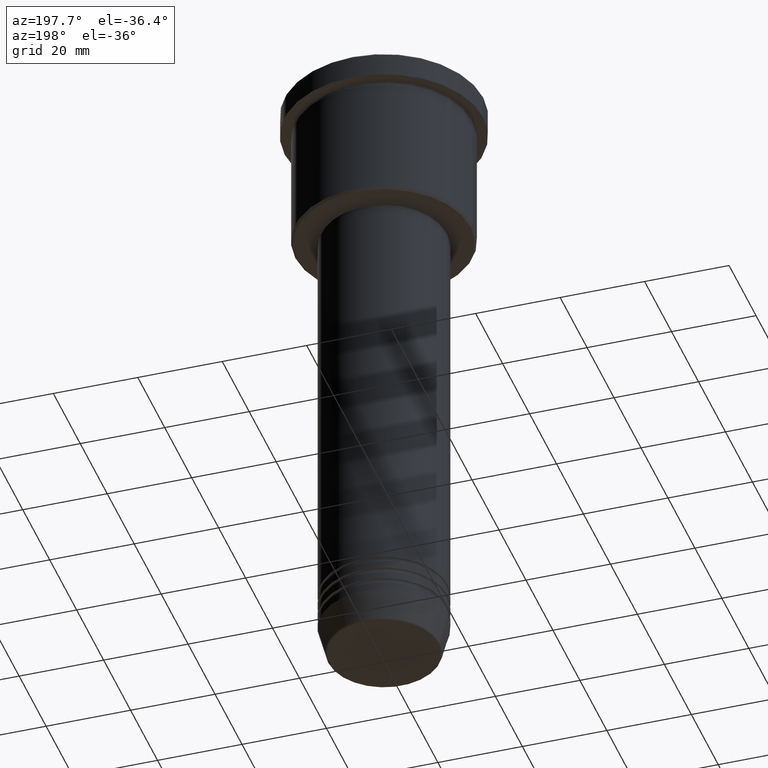
[diagram: clean part render]
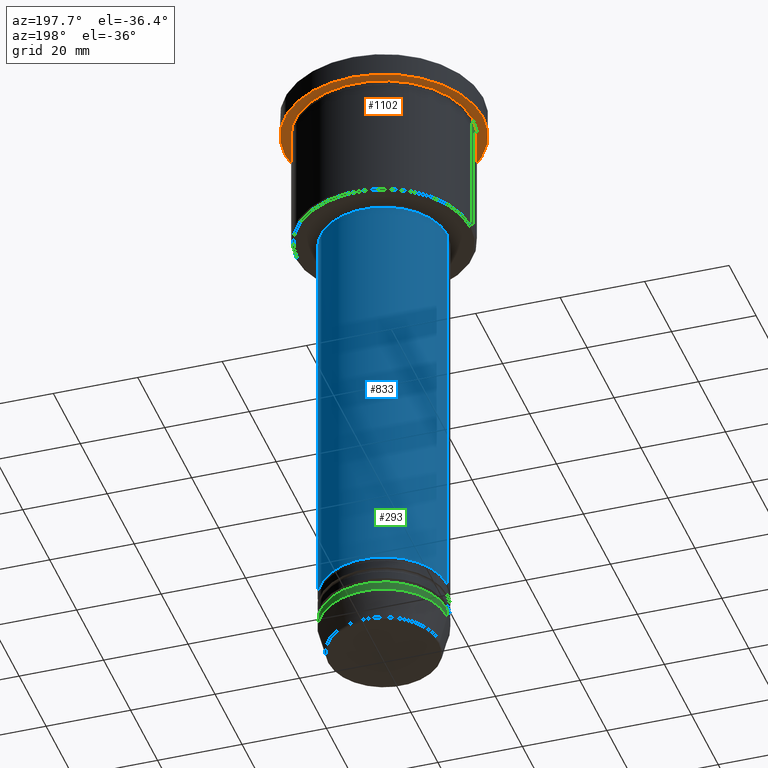
[diagram: same view with three faces highlighted in distinct colors, each labeled with its STEP entity id]
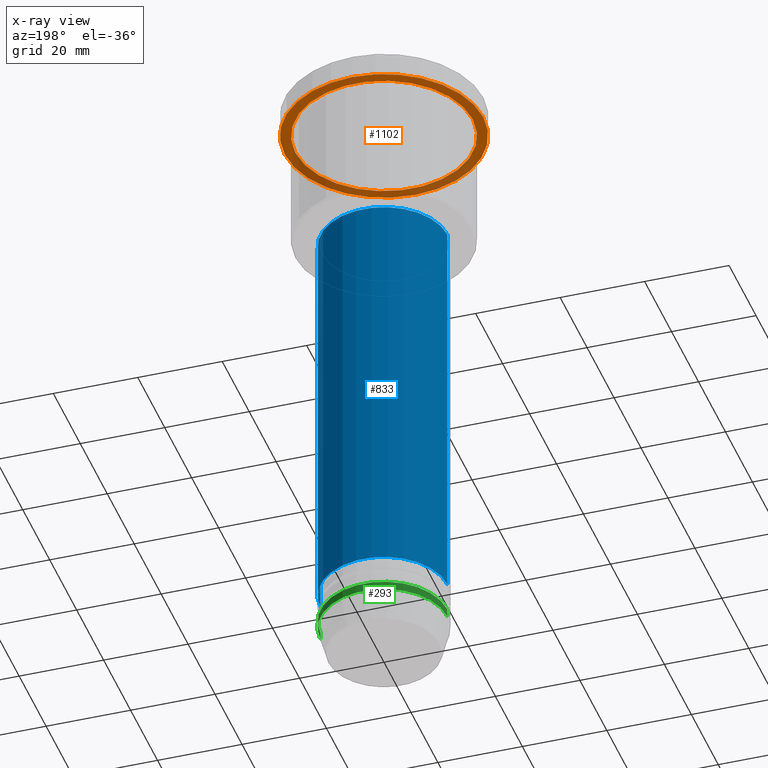
[diagram: x-ray of the same camera — body ghosted, the three highlighted faces saturated]
A machine part, auxiliary view with three faces highlighted in distinct colors.
The next image is the same camera in x-ray (body ghosted, the three faces saturated) — at least one of them is partly hidden behind the body in this view.
Their STEP definitions:

[orange] entity #1102 — the highlighted planar face has unit normal (0, 0, -1).
#15 = VERTEX_POINT ( 'NONE', #117 ) ;
#32 = EDGE_CURVE ( 'NONE', #735, #15, #708, .T. ) ;
#34 = VERTEX_POINT ( 'NONE', #1124 ) ;
#44 = CARTESIAN_POINT ( 'NONE',  ( 0.000000000000000000, 0.000000000000000000, -5.999999999999994671 ) ) ;
#59 = EDGE_LOOP ( 'NONE', ( #718, #992 ) ) ;
#104 = AXIS2_PLACEMENT_3D ( 'NONE', #698, #152, #970 ) ;
#117 = CARTESIAN_POINT ( 'NONE',  ( -21.00000000000000000, 0.000000000000000000, -5.999999999999994671 ) ) ;
#119 = EDGE_LOOP ( 'NONE', ( #531, #515 ) ) ;
#135 = CIRCLE ( 'NONE', #565, 23.50000000000000000 ) ;
#152 = DIRECTION ( 'NONE',  ( -0.000000000000000000, -0.000000000000000000, 1.000000000000000000 ) ) ;
#154 = CARTESIAN_POINT ( 'NONE',  ( 23.50000000000000000, 0.000000000000000000, -5.999999999999994671 ) ) ;
#235 = CARTESIAN_POINT ( 'NONE',  ( 0.000000000000000000, 23.50000000000000000, -5.999999999999994671 ) ) ;
#309 = CIRCLE ( 'NONE', #959, 21.00000000000000000 ) ;
#335 = DIRECTION ( 'NONE',  ( -1.000000000000000000, 0.000000000000000000, -0.000000000000000000 ) ) ;
#406 = AXIS2_PLACEMENT_3D ( 'NONE', #235, #1148, #335 ) ;
#432 = PLANE ( 'NONE',  #406 ) ;
#483 = DIRECTION ( 'NONE',  ( -1.000000000000000000, 0.000000000000000000, 0.000000000000000000 ) ) ;
#485 = EDGE_CURVE ( 'NONE', #661, #34, #135, .T. ) ;
#491 = DIRECTION ( 'NONE',  ( -0.000000000000000000, -0.000000000000000000, 1.000000000000000000 ) ) ;
#502 = CIRCLE ( 'NONE', #104, 23.50000000000000000 ) ;
#515 = ORIENTED_EDGE ( 'NONE', *, *, #1092, .F. ) ;
#524 = FACE_BOUND ( 'NONE', #59, .T. ) ;
#531 = ORIENTED_EDGE ( 'NONE', *, *, #485, .F. ) ;
#546 = AXIS2_PLACEMENT_3D ( 'NONE', #44, #758, #483 ) ;
#565 = AXIS2_PLACEMENT_3D ( 'NONE', #948, #491, #943 ) ;
#661 = VERTEX_POINT ( 'NONE', #154 ) ;
#696 = CARTESIAN_POINT ( 'NONE',  ( 21.00000000000000000, 2.571758278209441661E-15, -5.999999999999994671 ) ) ;
#698 = CARTESIAN_POINT ( 'NONE',  ( 0.000000000000000000, 0.000000000000000000, -5.999999999999994671 ) ) ;
#708 = CIRCLE ( 'NONE', #546, 21.00000000000000000 ) ;
#718 = ORIENTED_EDGE ( 'NONE', *, *, #1073, .T. ) ;
#735 = VERTEX_POINT ( 'NONE', #696 ) ;
#758 = DIRECTION ( 'NONE',  ( -0.000000000000000000, -0.000000000000000000, 1.000000000000000000 ) ) ;
#786 = DIRECTION ( 'NONE',  ( -0.000000000000000000, -0.000000000000000000, 1.000000000000000000 ) ) ;
#862 = FACE_OUTER_BOUND ( 'NONE', #119, .T. ) ;
#866 = DIRECTION ( 'NONE',  ( -1.000000000000000000, 0.000000000000000000, 0.000000000000000000 ) ) ;
#872 = CARTESIAN_POINT ( 'NONE',  ( 0.000000000000000000, 0.000000000000000000, -5.999999999999994671 ) ) ;
#943 = DIRECTION ( 'NONE',  ( 1.000000000000000000, 0.000000000000000000, 0.000000000000000000 ) ) ;
#948 = CARTESIAN_POINT ( 'NONE',  ( 0.000000000000000000, 0.000000000000000000, -5.999999999999994671 ) ) ;
#959 = AXIS2_PLACEMENT_3D ( 'NONE', #872, #786, #866 ) ;
#970 = DIRECTION ( 'NONE',  ( 1.000000000000000000, 0.000000000000000000, 0.000000000000000000 ) ) ;
#992 = ORIENTED_EDGE ( 'NONE', *, *, #32, .T. ) ;
#1073 = EDGE_CURVE ( 'NONE', #15, #735, #309, .T. ) ;
#1092 = EDGE_CURVE ( 'NONE', #34, #661, #502, .T. ) ;
#1102 = ADVANCED_FACE ( 'NONE', ( #524, #862 ), #432, .T. ) ;
#1124 = CARTESIAN_POINT ( 'NONE',  ( -23.50000000000000000, 2.877919977996280320E-15, -5.999999999999994671 ) ) ;
#1148 = DIRECTION ( 'NONE',  ( 0.000000000000000000, 0.000000000000000000, -1.000000000000000000 ) ) ;

[blue] entity #833 — the highlighted cylindrical surface (partial cylindrical patch) has radius 15 mm, axis along (-0, -0, 1).
#7 = CARTESIAN_POINT ( 'NONE',  ( 15.00000000000000000, 0.000000000000000000, 0.000000000000000000 ) ) ;
#43 = EDGE_LOOP ( 'NONE', ( #50, #412, #1087, #1157 ) ) ;
#50 = ORIENTED_EDGE ( 'NONE', *, *, #947, .T. ) ;
#113 = DIRECTION ( 'NONE',  ( -0.000000000000000000, -0.000000000000000000, 1.000000000000000000 ) ) ;
#181 = EDGE_CURVE ( 'NONE', #667, #1163, #381, .T. ) ;
#184 = CARTESIAN_POINT ( 'NONE',  ( 0.000000000000000000, 0.000000000000000000, 0.000000000000000000 ) ) ;
#215 = DIRECTION ( 'NONE',  ( -0.000000000000000000, -0.000000000000000000, 1.000000000000000000 ) ) ;
#226 = VECTOR ( 'NONE', #1095, 1000.000000000000000 ) ;
#277 = DIRECTION ( 'NONE',  ( -0.000000000000000000, -0.000000000000000000, 1.000000000000000000 ) ) ;
#321 = VERTEX_POINT ( 'NONE', #1159 ) ;
#362 = CARTESIAN_POINT ( 'NONE',  ( -15.00000000000000000, 1.836970198721029589E-15, -134.9999999999999716 ) ) ;
#381 = LINE ( 'NONE', #7, #226 ) ;
#398 = VERTEX_POINT ( 'NONE', #362 ) ;
#412 = ORIENTED_EDGE ( 'NONE', *, *, #755, .T. ) ;
#425 = VECTOR ( 'NONE', #566, 1000.000000000000000 ) ;
#501 = AXIS2_PLACEMENT_3D ( 'NONE', #184, #277, #924 ) ;
#566 = DIRECTION ( 'NONE',  ( -0.000000000000000000, -0.000000000000000000, 1.000000000000000000 ) ) ;
#587 = DIRECTION ( 'NONE',  ( 1.000000000000000000, 0.000000000000000000, 0.000000000000000000 ) ) ;
#609 = EDGE_CURVE ( 'NONE', #1163, #321, #974, .T. ) ;
#659 = DIRECTION ( 'NONE',  ( 1.000000000000000000, 0.000000000000000000, 0.000000000000000000 ) ) ;
#667 = VERTEX_POINT ( 'NONE', #802 ) ;
#755 = EDGE_CURVE ( 'NONE', #398, #321, #1166, .T. ) ;
#782 = AXIS2_PLACEMENT_3D ( 'NONE', #1109, #113, #659 ) ;
#802 = CARTESIAN_POINT ( 'NONE',  ( 15.00000000000000000, 0.000000000000000000, -134.9999999999999716 ) ) ;
#806 = FACE_OUTER_BOUND ( 'NONE', #43, .T. ) ;
#810 = CARTESIAN_POINT ( 'NONE',  ( -15.00000000000000000, 1.836970198721029589E-15, 0.000000000000000000 ) ) ;
#833 = ADVANCED_FACE ( 'NONE', ( #806 ), #993, .T. ) ;
#876 = AXIS2_PLACEMENT_3D ( 'NONE', #1030, #215, #587 ) ;
#885 = CARTESIAN_POINT ( 'NONE',  ( 15.00000000000000000, 0.000000000000000000, -37.00000000000001421 ) ) ;
#924 = DIRECTION ( 'NONE',  ( 1.000000000000000000, 0.000000000000000000, 0.000000000000000000 ) ) ;
#947 = EDGE_CURVE ( 'NONE', #667, #398, #1063, .T. ) ;
#974 = CIRCLE ( 'NONE', #876, 15.00000000000000000 ) ;
#993 = CYLINDRICAL_SURFACE ( 'NONE', #501, 15.00000000000000000 ) ;
#1030 = CARTESIAN_POINT ( 'NONE',  ( 0.000000000000000000, 0.000000000000000000, -37.00000000000001421 ) ) ;
#1063 = CIRCLE ( 'NONE', #782, 15.00000000000000000 ) ;
#1087 = ORIENTED_EDGE ( 'NONE', *, *, #609, .F. ) ;
#1095 = DIRECTION ( 'NONE',  ( -0.000000000000000000, -0.000000000000000000, 1.000000000000000000 ) ) ;
#1109 = CARTESIAN_POINT ( 'NONE',  ( 0.000000000000000000, 0.000000000000000000, -134.9999999999999716 ) ) ;
#1157 = ORIENTED_EDGE ( 'NONE', *, *, #181, .F. ) ;
#1159 = CARTESIAN_POINT ( 'NONE',  ( -15.00000000000000000, 1.836970198721029589E-15, -37.00000000000001421 ) ) ;
#1163 = VERTEX_POINT ( 'NONE', #885 ) ;
#1166 = LINE ( 'NONE', #810, #425 ) ;

[green] entity #293 — the highlighted cylindrical surface (partial cylindrical patch) has radius 15 mm, axis along (-0, -0, 1).
#24 = ORIENTED_EDGE ( 'NONE', *, *, #378, .F. ) ;
#35 = AXIS2_PLACEMENT_3D ( 'NONE', #341, #535, #901 ) ;
#62 = VERTEX_POINT ( 'NONE', #322 ) ;
#82 = ORIENTED_EDGE ( 'NONE', *, *, #395, .T. ) ;
#190 = DIRECTION ( 'NONE',  ( -0.000000000000000000, -0.000000000000000000, 1.000000000000000000 ) ) ;
#205 = VERTEX_POINT ( 'NONE', #811 ) ;
#224 = CARTESIAN_POINT ( 'NONE',  ( 0.000000000000000000, 0.000000000000000000, 0.000000000000000000 ) ) ;
#267 = DIRECTION ( 'NONE',  ( -0.000000000000000000, -0.000000000000000000, 1.000000000000000000 ) ) ;
#275 = DIRECTION ( 'NONE',  ( -0.000000000000000000, -0.000000000000000000, 1.000000000000000000 ) ) ;
#279 = AXIS2_PLACEMENT_3D ( 'NONE', #1179, #275, #1172 ) ;
#293 = ADVANCED_FACE ( 'NONE', ( #680 ), #1035, .T. ) ;
#295 = EDGE_CURVE ( 'NONE', #994, #205, #797, .T. ) ;
#322 = CARTESIAN_POINT ( 'NONE',  ( -15.00000000000000000, 1.836970198721029589E-15, -144.0000000000000284 ) ) ;
#341 = CARTESIAN_POINT ( 'NONE',  ( 0.000000000000000000, 0.000000000000000000, -142.0000000000000284 ) ) ;
#355 = EDGE_LOOP ( 'NONE', ( #82, #1176, #554, #24 ) ) ;
#378 = EDGE_CURVE ( 'NONE', #1037, #994, #900, .T. ) ;
#395 = EDGE_CURVE ( 'NONE', #1037, #62, #670, .T. ) ;
#535 = DIRECTION ( 'NONE',  ( -0.000000000000000000, -0.000000000000000000, 1.000000000000000000 ) ) ;
#542 = AXIS2_PLACEMENT_3D ( 'NONE', #224, #594, #902 ) ;
#554 = ORIENTED_EDGE ( 'NONE', *, *, #295, .F. ) ;
#593 = CARTESIAN_POINT ( 'NONE',  ( 15.00000000000000000, 0.000000000000000000, -142.0000000000000284 ) ) ;
#594 = DIRECTION ( 'NONE',  ( -0.000000000000000000, -0.000000000000000000, 1.000000000000000000 ) ) ;
#651 = CARTESIAN_POINT ( 'NONE',  ( -15.00000000000000000, 1.836970198721029589E-15, 0.000000000000000000 ) ) ;
#670 = CIRCLE ( 'NONE', #279, 15.00000000000000000 ) ;
#680 = FACE_OUTER_BOUND ( 'NONE', #355, .T. ) ;
#738 = CARTESIAN_POINT ( 'NONE',  ( 15.00000000000000000, 0.000000000000000000, 0.000000000000000000 ) ) ;
#767 = CARTESIAN_POINT ( 'NONE',  ( 15.00000000000000000, 0.000000000000000000, -144.0000000000000284 ) ) ;
#780 = VECTOR ( 'NONE', #267, 1000.000000000000000 ) ;
#797 = CIRCLE ( 'NONE', #35, 15.00000000000000000 ) ;
#809 = EDGE_CURVE ( 'NONE', #62, #205, #827, .T. ) ;
#811 = CARTESIAN_POINT ( 'NONE',  ( -15.00000000000000000, 1.836970198721029589E-15, -142.0000000000000284 ) ) ;
#827 = LINE ( 'NONE', #651, #917 ) ;
#900 = LINE ( 'NONE', #738, #780 ) ;
#901 = DIRECTION ( 'NONE',  ( 1.000000000000000000, 0.000000000000000000, 0.000000000000000000 ) ) ;
#902 = DIRECTION ( 'NONE',  ( 1.000000000000000000, 0.000000000000000000, 0.000000000000000000 ) ) ;
#917 = VECTOR ( 'NONE', #190, 1000.000000000000000 ) ;
#994 = VERTEX_POINT ( 'NONE', #593 ) ;
#1035 = CYLINDRICAL_SURFACE ( 'NONE', #542, 15.00000000000000000 ) ;
#1037 = VERTEX_POINT ( 'NONE', #767 ) ;
#1172 = DIRECTION ( 'NONE',  ( 1.000000000000000000, 0.000000000000000000, 0.000000000000000000 ) ) ;
#1176 = ORIENTED_EDGE ( 'NONE', *, *, #809, .T. ) ;
#1179 = CARTESIAN_POINT ( 'NONE',  ( 0.000000000000000000, 0.000000000000000000, -144.0000000000000284 ) ) ;